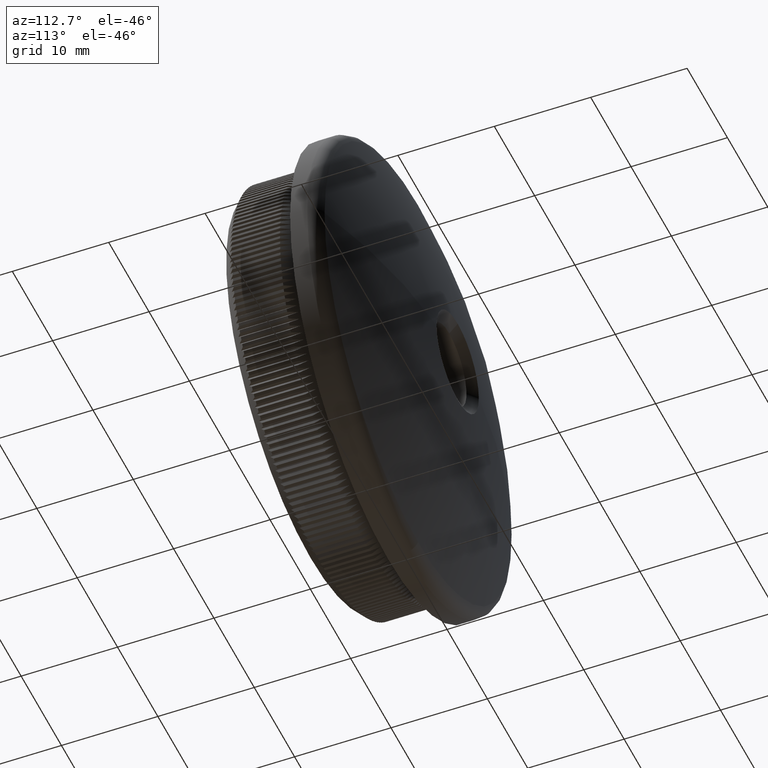
[diagram: clean part render]
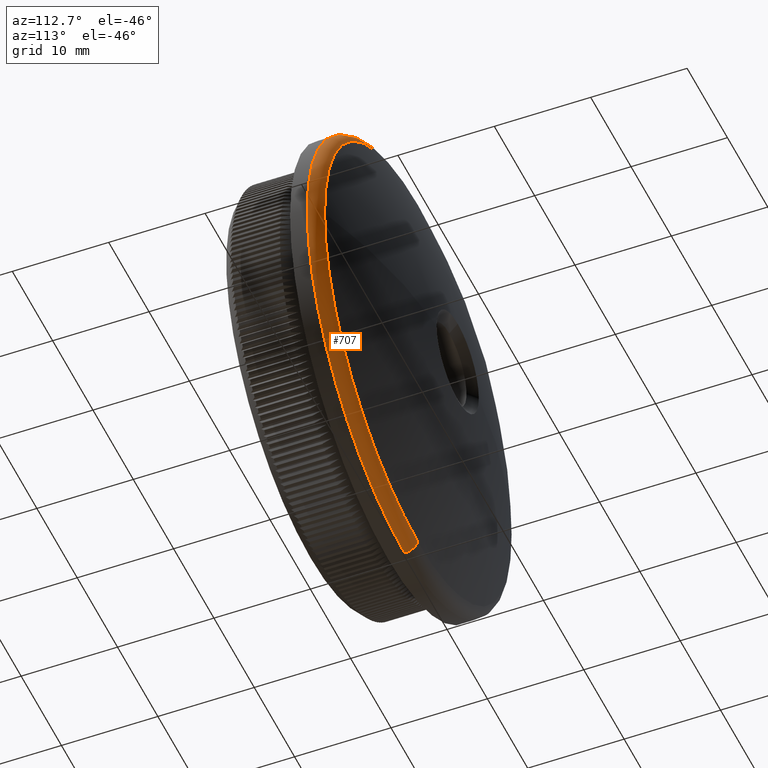
[diagram: same view with one face highlighted and labeled with its STEP entity id]
A machine part, auxiliary view. The second image highlights one B-rep face of the part: STEP entity #707.
In plain terms, the highlighted toroidal blend (fillet) surface has major radius 22.65 mm and minor (blend) radius 1.5 mm.
Its self-contained STEP definition (entity closure, byte-faithful):
#193 = VERTEX_POINT ( 'NONE', #15055 ) ;
#212 = DIRECTION ( 'NONE',  ( 0.0000000000000000000, 0.0000000000000000000, -1.000000000000000000 ) ) ;
#707 = ADVANCED_FACE ( 'NONE', ( #2009 ), #21476, .T. ) ;
#858 = DIRECTION ( 'NONE',  ( -0.0000000000000000000, -1.000000000000000000, -0.0000000000000000000 ) ) ;
#1198 = CARTESIAN_POINT ( 'NONE',  ( 2.773825000068754800E-015, 9.780020886796899400, 22.64999999999999900 ) ) ;
#2009 = FACE_OUTER_BOUND ( 'NONE', #15713, .T. ) ;
#3080 = DIRECTION ( 'NONE',  ( -1.000000000000000000, 0.0000000000000000000, 0.0000000000000000000 ) ) ;
#4979 = VERTEX_POINT ( 'NONE', #25574 ) ;
#5316 = CIRCLE ( 'NONE', #26167, 24.15000000000000200 ) ;
#5447 = EDGE_CURVE ( 'NONE', #14874, #193, #23412, .T. ) ;
#5739 = DIRECTION ( 'NONE',  ( 0.0000000000000000000, 0.0000000000000000000, -1.000000000000000000 ) ) ;
#5990 = ORIENTED_EDGE ( 'NONE', *, *, #17322, .T. ) ;
#6847 = CIRCLE ( 'NONE', #18434, 1.500000000000001300 ) ;
#7009 = CARTESIAN_POINT ( 'NONE',  ( 2.957522019940858300E-015, 9.780020886796899400, 24.15000000000000200 ) ) ;
#7682 = DIRECTION ( 'NONE',  ( 0.0000000000000000000, 1.000000000000000000, 0.0000000000000000000 ) ) ;
#7842 = DIRECTION ( 'NONE',  ( 0.0000000000000000000, 1.000000000000000000, 0.0000000000000000000 ) ) ;
#8469 = ORIENTED_EDGE ( 'NONE', *, *, #5447, .F. ) ;
#8945 = DIRECTION ( 'NONE',  ( -1.224646799147352000E-016, 0.0000000000000000000, -1.000000000000000000 ) ) ;
#9074 = ORIENTED_EDGE ( 'NONE', *, *, #24583, .F. ) ;
#9228 = AXIS2_PLACEMENT_3D ( 'NONE', #17949, #7842, #212 ) ;
#10457 = EDGE_CURVE ( 'NONE', #24623, #4979, #16912, .T. ) ;
#11076 = DIRECTION ( 'NONE',  ( 0.0000000000000000000, 0.0000000000000000000, 1.000000000000000000 ) ) ;
#12418 = CIRCLE ( 'NONE', #9228, 23.19018648117216600 ) ;
#13880 = DIRECTION ( 'NONE',  ( 0.0000000000000000000, 0.0000000000000000000, -1.000000000000000000 ) ) ;
#14874 = VERTEX_POINT ( 'NONE', #26643 ) ;
#15055 = CARTESIAN_POINT ( 'NONE',  ( 23.19018648117216600, 11.17937736945556400, 0.0000000000000000000 ) ) ;
#15713 = EDGE_LOOP ( 'NONE', ( #8469, #5990, #9074, #29904, #17206 ) ) ;
#15946 = CARTESIAN_POINT ( 'NONE',  ( 0.0000000000000000000, 9.780020886796899400, 0.0000000000000000000 ) ) ;
#16912 = CIRCLE ( 'NONE', #23192, 1.500000000000001300 ) ;
#17206 = ORIENTED_EDGE ( 'NONE', *, *, #27557, .F. ) ;
#17322 = EDGE_CURVE ( 'NONE', #14874, #22242, #6847, .T. ) ;
#17670 = DIRECTION ( 'NONE',  ( 0.0000000000000000000, 0.0000000000000000000, -1.000000000000000000 ) ) ;
#17949 = CARTESIAN_POINT ( 'NONE',  ( 0.0000000000000000000, 11.17937736945556700, 0.0000000000000000000 ) ) ;
#18434 = AXIS2_PLACEMENT_3D ( 'NONE', #1198, #24128, #8945 ) ;
#18870 = CARTESIAN_POINT ( 'NONE',  ( 0.0000000000000000000, 9.780020886796899400, 0.0000000000000000000 ) ) ;
#19873 = AXIS2_PLACEMENT_3D ( 'NONE', #18870, #29049, #13880 ) ;
#21476 = TOROIDAL_SURFACE ( 'NONE', #19873, 22.64999999999999900, 1.500000000000000000 ) ;
#22242 = VERTEX_POINT ( 'NONE', #7009 ) ;
#22864 = CARTESIAN_POINT ( 'NONE',  ( 0.0000000000000000000, 11.17937736945556700, 0.0000000000000000000 ) ) ;
#23192 = AXIS2_PLACEMENT_3D ( 'NONE', #30992, #3080, #11076 ) ;
#23412 = CIRCLE ( 'NONE', #25841, 23.19018648117216600 ) ;
#24128 = DIRECTION ( 'NONE',  ( 1.000000000000000000, 0.0000000000000000000, -1.224646799147353200E-016 ) ) ;
#24583 = EDGE_CURVE ( 'NONE', #4979, #22242, #5316, .T. ) ;
#24623 = VERTEX_POINT ( 'NONE', #28666 ) ;
#25574 = CARTESIAN_POINT ( 'NONE',  ( 0.0000000000000000000, 9.780020886796899400, -24.15000000000000200 ) ) ;
#25841 = AXIS2_PLACEMENT_3D ( 'NONE', #22864, #7682, #17670 ) ;
#26167 = AXIS2_PLACEMENT_3D ( 'NONE', #15946, #858, #5739 ) ;
#26643 = CARTESIAN_POINT ( 'NONE',  ( 2.898750392260314800E-015, 11.17937736945556700, 23.19018648117216600 ) ) ;
#27557 = EDGE_CURVE ( 'NONE', #193, #24623, #12418, .T. ) ;
#28666 = CARTESIAN_POINT ( 'NONE',  ( 0.0000000000000000000, 11.17937736945556700, -23.19018648117216600 ) ) ;
#29049 = DIRECTION ( 'NONE',  ( -0.0000000000000000000, -1.000000000000000000, -0.0000000000000000000 ) ) ;
#29904 = ORIENTED_EDGE ( 'NONE', *, *, #10457, .F. ) ;
#30992 = CARTESIAN_POINT ( 'NONE',  ( 0.0000000000000000000, 9.780020886796899400, -22.64999999999999900 ) ) ;